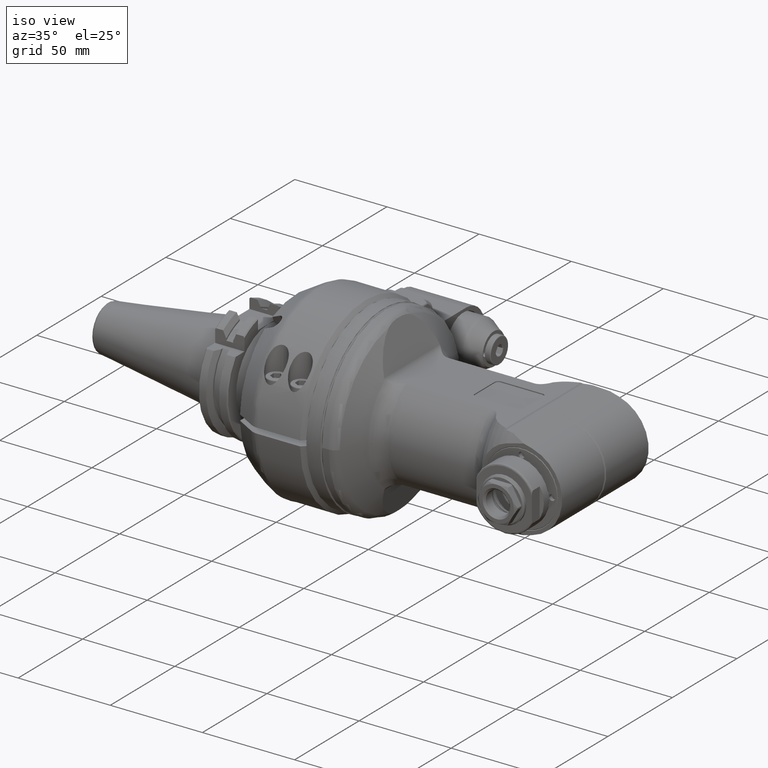
[diagram: clean part render]
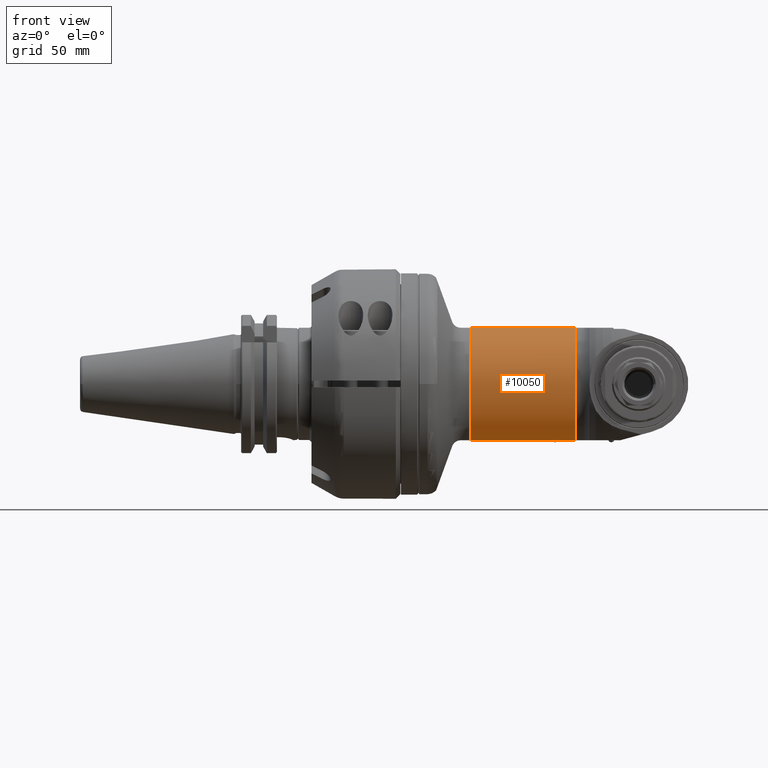
[diagram: tour spotlight — one face highlighted and labeled with its STEP entity id]
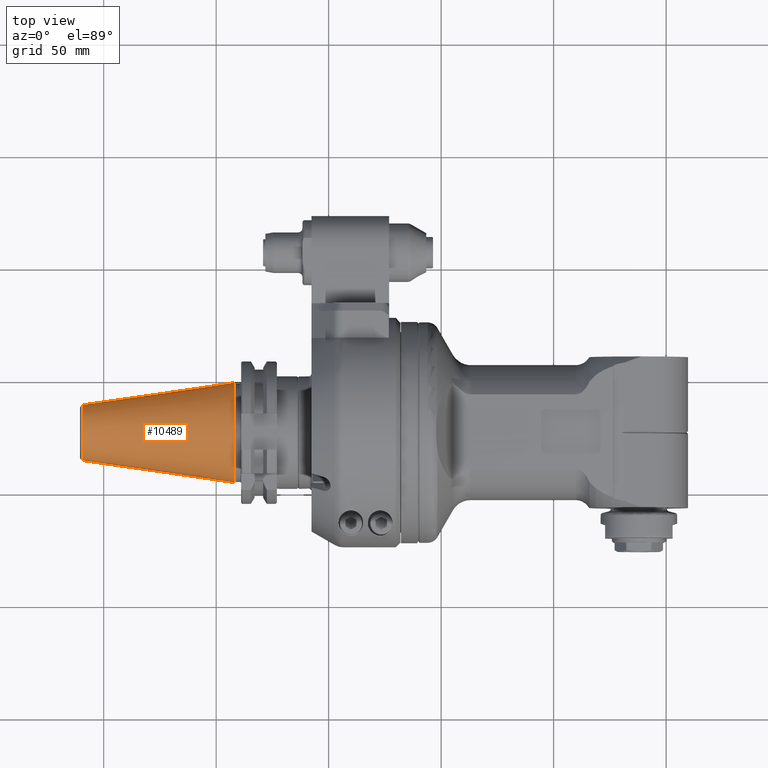
[diagram: tour spotlight — one face highlighted and labeled with its STEP entity id]
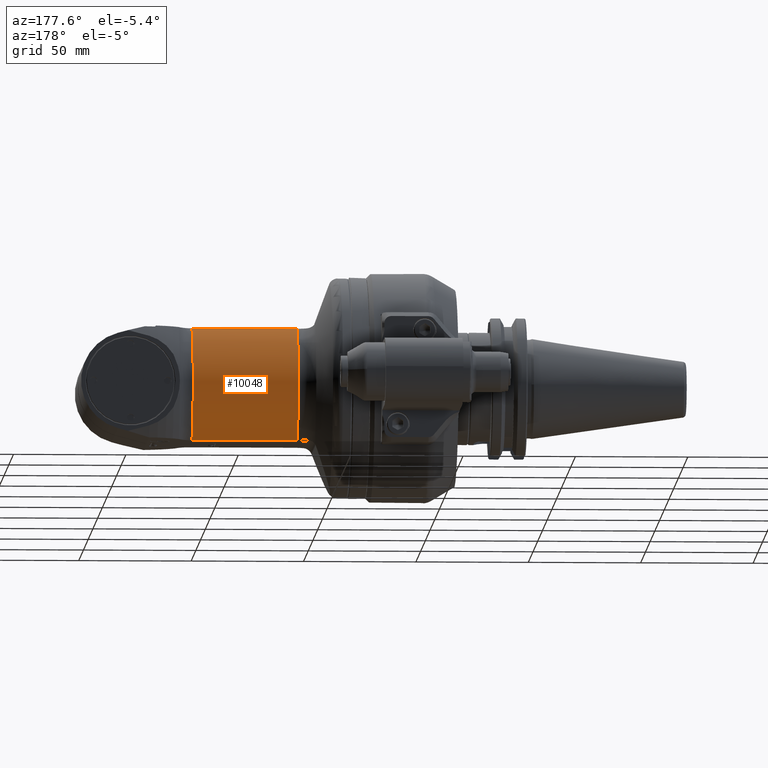
[diagram: tour spotlight — one face highlighted and labeled with its STEP entity id]
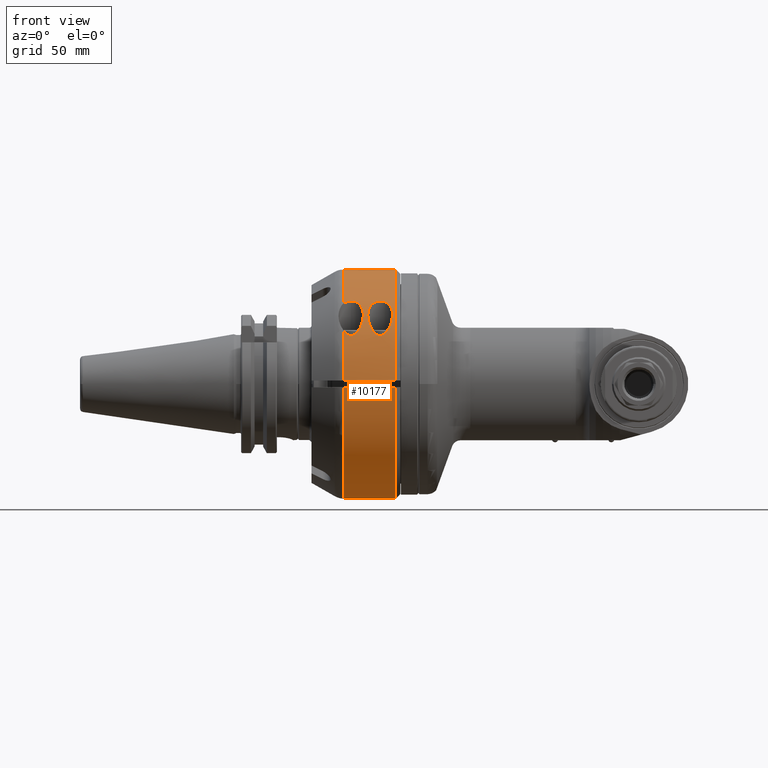
[diagram: tour spotlight — one face highlighted and labeled with its STEP entity id]
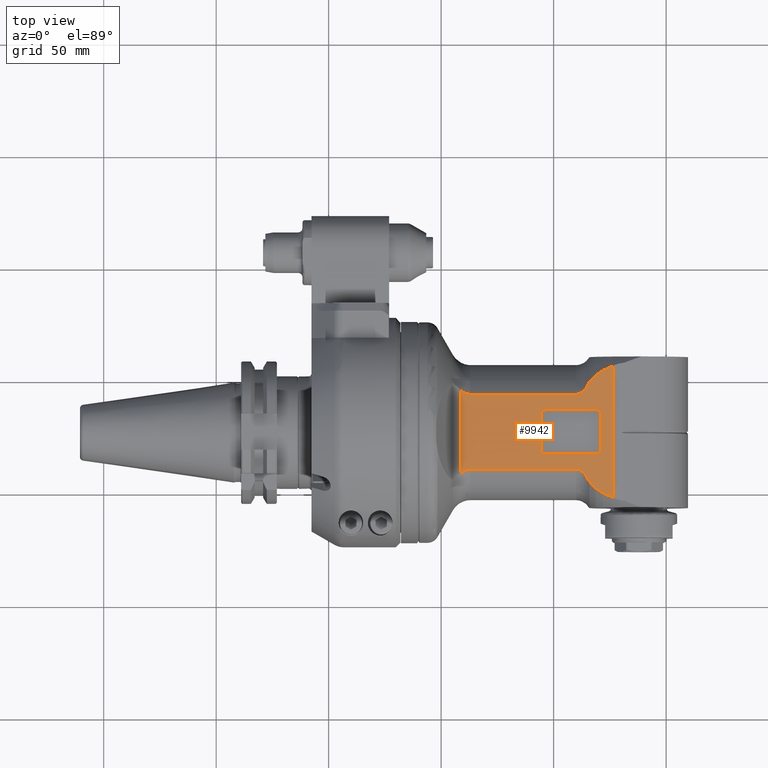
[diagram: tour spotlight — one face highlighted and labeled with its STEP entity id]
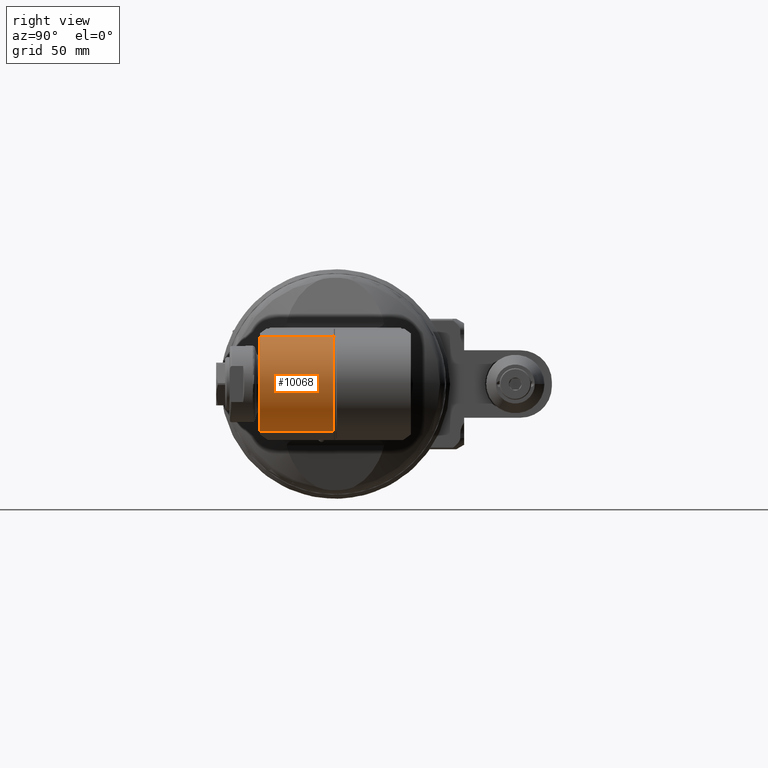
[diagram: tour spotlight — one face highlighted and labeled with its STEP entity id]
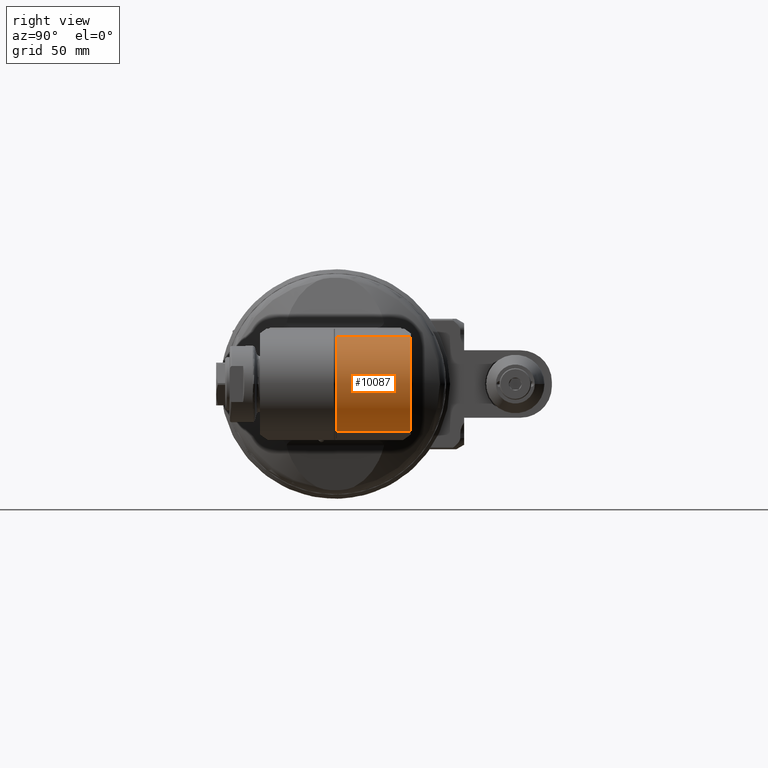
[diagram: tour spotlight — one face highlighted and labeled with its STEP entity id]
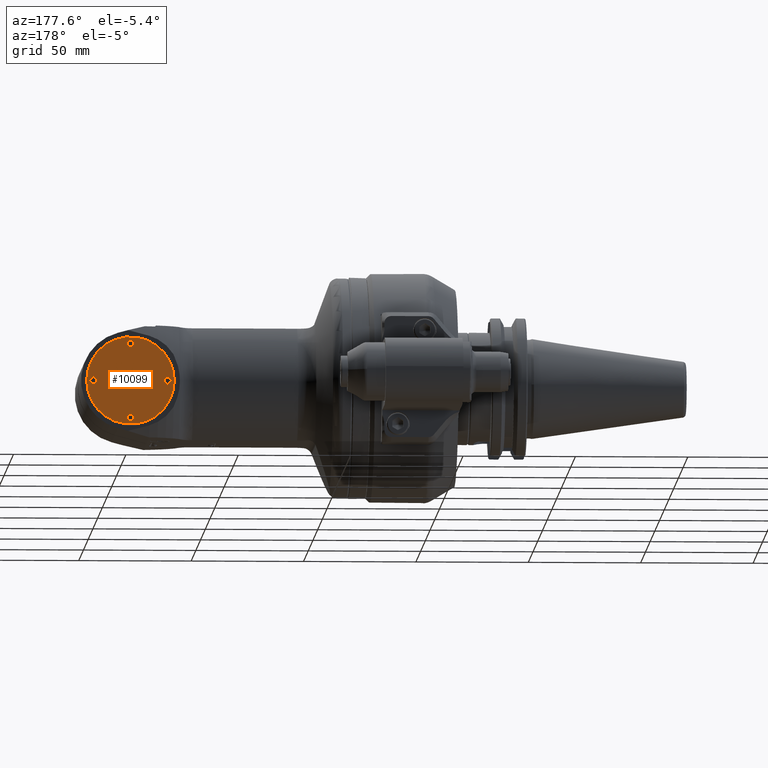
[diagram: tour spotlight — one face highlighted and labeled with its STEP entity id]
A machine part: a face-by-face anatomy tour. The part has 625 B-rep faces; the first image is the clean iso view, then the 8 largest visible faces are spotlighted one at a time (largest first), each with its STEP entity span.

Face 1 — front view, entity #10050. In plain terms, the highlighted cylindrical surface (partial cylindrical patch) has radius 30 mm, axis along (-1, 0, -0).
Definition (entity closure, byte-faithful):
#702=LINE('',#15178,#1375);
#812=LINE('',#15904,#1485);
#1375=VECTOR('',#12054,46.7720146362);
#1485=VECTOR('',#12602,46.7720146362);
#2049=CYLINDRICAL_SURFACE('',#10922,30.);
#2325=FACE_OUTER_BOUND('',#3000,.T.);
#3000=EDGE_LOOP('',(#7379,#7380,#7381,#7382));
#3704=CIRCLE('',#10923,30.);
#3705=CIRCLE('',#10924,30.);
#4167=VERTEX_POINT('',#15168);
#4168=VERTEX_POINT('',#15177);
#4353=VERTEX_POINT('',#15902);
#4354=VERTEX_POINT('',#15903);
#5217=EDGE_CURVE('',#4168,#4167,#702,.T.);
#5478=EDGE_CURVE('',#4353,#4354,#812,.T.);
#5506=EDGE_CURVE('',#4353,#4167,#3704,.T.);
#5507=EDGE_CURVE('',#4354,#4168,#3705,.T.);
#7379=ORIENTED_EDGE('',*,*,#5506,.F.);
#7380=ORIENTED_EDGE('',*,*,#5478,.T.);
#7381=ORIENTED_EDGE('',*,*,#5507,.T.);
#7382=ORIENTED_EDGE('',*,*,#5217,.T.);
#10050=ADVANCED_FACE('',(#2325),#2049,.T.);
#10922=AXIS2_PLACEMENT_3D('',#16024,#12625,#12626);
#10923=AXIS2_PLACEMENT_3D('',#16025,#12627,#12628);
#10924=AXIS2_PLACEMENT_3D('',#16026,#12629,#12630);
#12054=DIRECTION('',(-1.,0.,0.));
#12602=DIRECTION('',(1.,0.,0.));
#12625=DIRECTION('center_axis',(-1.,0.,0.));
#12626=DIRECTION('ref_axis',(0.,-1.,-1.22464679914735E-16));
#12627=DIRECTION('center_axis',(-1.,0.,0.));
#12628=DIRECTION('ref_axis',(0.,-0.552770798392605,-0.833333333333308));
#12629=DIRECTION('center_axis',(-1.,0.,0.));
#12630=DIRECTION('ref_axis',(0.,-0.552770798392605,-0.833333333333308));
#15168=CARTESIAN_POINT('',(35.16580758197,-16.58312395178,25.));
#15177=CARTESIAN_POINT('',(81.93782221817,-16.58312395178,25.));
#15178=CARTESIAN_POINT('',(81.93782221817,-16.58312395178,25.));
#15902=CARTESIAN_POINT('',(35.16580758197,-16.58312395178,-25.));
#15903=CARTESIAN_POINT('',(81.93782221817,-16.58312395178,-25.));
#15904=CARTESIAN_POINT('',(35.16580758197,-16.58312395178,-25.));
#16024=CARTESIAN_POINT('Origin',(74.97446463088,0.,0.));
#16025=CARTESIAN_POINT('Origin',(35.16580758197,0.,0.));
#16026=CARTESIAN_POINT('Origin',(81.93782221817,0.,0.));

Face 2 — top view, entity #10489. In plain terms, the highlighted conical surface has half-angle 8.297 deg.
Definition (entity closure, byte-faithful):
#650=CONICAL_SURFACE('',#11703,17.33109441571,0.144812411498922);
#1306=LINE('',#60051,#1979);
#1979=VECTOR('',#14674,17.33109441571);
#2764=FACE_OUTER_BOUND('',#3493,.T.);
#3493=EDGE_LOOP('',(#9520,#9521,#9522,#9523,#9524,#9525));
#4043=CIRCLE('',#11701,22.225);
#4044=CIRCLE('',#11702,22.225);
#4045=CIRCLE('',#11704,12.43718883141);
#4046=CIRCLE('',#11705,12.43718883141);
#5037=VERTEX_POINT('',#60044);
#5038=VERTEX_POINT('',#60045);
#5039=VERTEX_POINT('',#60050);
#5040=VERTEX_POINT('',#60052);
#6539=EDGE_CURVE('',#5037,#5038,#4043,.T.);
#6541=EDGE_CURVE('',#5038,#5037,#4044,.T.);
#6542=EDGE_CURVE('',#5037,#5039,#1306,.T.);
#6543=EDGE_CURVE('',#5040,#5039,#4045,.T.);
#6544=EDGE_CURVE('',#5039,#5040,#4046,.T.);
#9520=ORIENTED_EDGE('',*,*,#6539,.F.);
#9521=ORIENTED_EDGE('',*,*,#6542,.T.);
#9522=ORIENTED_EDGE('',*,*,#6543,.F.);
#9523=ORIENTED_EDGE('',*,*,#6544,.F.);
#9524=ORIENTED_EDGE('',*,*,#6542,.F.);
#9525=ORIENTED_EDGE('',*,*,#6541,.F.);
#10489=ADVANCED_FACE('',(#2764),#650,.T.);
#11701=AXIS2_PLACEMENT_3D('',#60046,#14667,#14668);
#11702=AXIS2_PLACEMENT_3D('',#60048,#14670,#14671);
#11703=AXIS2_PLACEMENT_3D('',#60049,#14672,#14673);
#11704=AXIS2_PLACEMENT_3D('',#60053,#14675,#14676);
#11705=AXIS2_PLACEMENT_3D('',#60054,#14677,#14678);
#14667=DIRECTION('center_axis',(1.,0.,0.));
#14668=DIRECTION('ref_axis',(0.,-1.,0.));
#14670=DIRECTION('center_axis',(1.,0.,0.));
#14671=DIRECTION('ref_axis',(0.,-1.,0.));
#14672=DIRECTION('center_axis',(1.,0.,0.));
#14673=DIRECTION('ref_axis',(0.,0.,1.));
#14674=DIRECTION('',(-0.98953299358046,-1.76724869581176E-17,0.144306807239621));
#14675=DIRECTION('center_axis',(-1.,0.,0.));
#14676=DIRECTION('ref_axis',(0.,-1.,0.));
#14677=DIRECTION('center_axis',(-1.,0.,0.));
#14678=DIRECTION('ref_axis',(0.,-1.,0.));
#60044=CARTESIAN_POINT('',(-86.,0.,-22.225));
#60045=CARTESIAN_POINT('',(-86.0000000000009,22.2249999999967,-2.72177751110459E-15));
#60046=CARTESIAN_POINT('Origin',(-86.,0.,0.));
#60048=CARTESIAN_POINT('Origin',(-86.,0.,0.));
#60049=CARTESIAN_POINT('Origin',(-119.55823010543,0.,0.));
#60050=CARTESIAN_POINT('',(-153.1164602109,1.5231163492777E-15,-12.4371888314096));
#60051=CARTESIAN_POINT('',(-119.55823010543,2.12244693019198E-15,-17.33109441571));
#60052=CARTESIAN_POINT('',(-153.1164602109,-12.43718883141,0.));
#60053=CARTESIAN_POINT('Origin',(-153.1164602109,0.,0.));
#60054=CARTESIAN_POINT('Origin',(-153.1164602109,0.,0.));

Face 3 — auxiliary view, entity #10048. In plain terms, the highlighted cylindrical surface (partial cylindrical patch) has radius 30 mm, axis along (-1, 0, -0).
Definition (entity closure, byte-faithful):
#704=LINE('',#15239,#1377);
#811=LINE('',#15900,#1484);
#1377=VECTOR('',#12056,46.7720146362);
#1484=VECTOR('',#12599,46.7720146362);
#2048=CYLINDRICAL_SURFACE('',#10912,30.);
#2323=FACE_OUTER_BOUND('',#2996,.T.);
#2996=EDGE_LOOP('',(#7344,#7345,#7346,#7347));
#3695=CIRCLE('',#10911,30.);
#3696=CIRCLE('',#10913,30.);
#4177=VERTEX_POINT('',#15223);
#4178=VERTEX_POINT('',#15238);
#4351=VERTEX_POINT('',#15887);
#4352=VERTEX_POINT('',#15898);
#5228=EDGE_CURVE('',#4178,#4177,#704,.T.);
#5474=EDGE_CURVE('',#4178,#4351,#3695,.T.);
#5476=EDGE_CURVE('',#4352,#4177,#3696,.T.);
#5477=EDGE_CURVE('',#4352,#4351,#811,.T.);
#7344=ORIENTED_EDGE('',*,*,#5474,.F.);
#7345=ORIENTED_EDGE('',*,*,#5228,.T.);
#7346=ORIENTED_EDGE('',*,*,#5476,.F.);
#7347=ORIENTED_EDGE('',*,*,#5477,.T.);
#10048=ADVANCED_FACE('',(#2323),#2048,.T.);
#10911=AXIS2_PLACEMENT_3D('',#15888,#12593,#12594);
#10912=AXIS2_PLACEMENT_3D('',#15897,#12595,#12596);
#10913=AXIS2_PLACEMENT_3D('',#15899,#12597,#12598);
#12056=DIRECTION('',(1.,0.,0.));
#12593=DIRECTION('center_axis',(-1.,0.,0.));
#12594=DIRECTION('ref_axis',(0.,0.552770798392605,0.833333333333308));
#12595=DIRECTION('center_axis',(-1.,0.,0.));
#12596=DIRECTION('ref_axis',(0.,1.,0.));
#12597=DIRECTION('center_axis',(1.,0.,0.));
#12598=DIRECTION('ref_axis',(0.,0.552770798392605,-0.833333333333308));
#12599=DIRECTION('',(-1.,0.,0.));
#15223=CARTESIAN_POINT('',(81.93782221817,16.58312395178,25.));
#15238=CARTESIAN_POINT('',(35.16580758197,16.58312395178,25.));
#15239=CARTESIAN_POINT('',(35.16580758197,16.58312395178,25.));
#15887=CARTESIAN_POINT('',(35.16580758197,16.58312395178,-25.));
#15888=CARTESIAN_POINT('Origin',(35.16580758197,0.,0.));
#15897=CARTESIAN_POINT('Origin',(74.97446463088,0.,0.));
#15898=CARTESIAN_POINT('',(81.93782221817,16.58312395178,-25.));
#15899=CARTESIAN_POINT('Origin',(81.93782221817,0.,0.));
#15900=CARTESIAN_POINT('',(81.93782221817,16.58312395178,-25.));

Face 4 — front view, entity #10177. In plain terms, the highlighted cylindrical surface (partial cylindrical patch) has radius 51 mm, axis along (1, 0, 0).
Definition (entity closure, byte-faithful):
#92=B_SPLINE_CURVE_WITH_KNOTS('',3,(#16578,#16579,#16580,#16581,#16582,
#16583,#16584,#16585,#16586,#16587,#16588,#16589,#16590,#16591,#16592,#16593,
#16594,#16595),.UNSPECIFIED.,.F.,.F.,(4,2,2,2,2,2,2,2,4),(1.24497996375057,
1.57211089183856,1.89924181992655,2.10031433028339,2.30138684064023,2.50245935099707,
2.70353186135391,3.0306627894419,3.35779371752989),.UNSPECIFIED.);
#95=B_SPLINE_CURVE_WITH_KNOTS('',3,(#16673,#16674,#16675,#16676,#16677,
#16678),.UNSPECIFIED.,.F.,.F.,(4,2,4),(-0.351622839102922,-0.201072510356838,
0.),.UNSPECIFIED.);
#96=B_SPLINE_CURVE_WITH_KNOTS('',3,(#16680,#16681,#16682,#16683,#16684,
#16685,#16686,#16687,#16688,#16689,#16690,#16691,#16692,#16693,#16694,#16695,
#16696,#16697,#16698,#16699,#16700,#16701,#16702,#16703,#16704,#16705),
 .UNSPECIFIED.,.F.,.F.,(4,2,2,2,2,2,2,2,2,2,2,2,4),(0.,0.201072510356838,
0.402145020713677,0.729275948801668,1.05640687688966,1.45814522272358,1.85988356855749,
2.08063520459886,2.19101102261954,2.30138684064023,2.41176265866091,2.52213847668159,
2.7154535046118),.UNSPECIFIED.);
#97=B_SPLINE_CURVE_WITH_KNOTS('',3,(#16709,#16710,#16711,#16712,#16713,
#16714,#16715,#16716,#16717,#16718,#16719,#16720,#16721,#16722,#16723,#16724,
#16725,#16726,#16727,#16728,#16729,#16730,#16731),.UNSPECIFIED.,.F.,.F.,
(4,2,2,2,2,3,2,2,2,2,4),(-1.24497996375057,-0.843241617916652,-0.441503272082734,
-0.220751636041367,-0.110375818020684,0.,0.110375818020684,0.220751636041367,
0.441503272082734,0.843241617916652,1.24497996375057),.UNSPECIFIED.);
#453=FACE_BOUND('',#3145,.T.);
#929=LINE('',#16616,#1602);
#931=LINE('',#16620,#1604);
#937=LINE('',#16667,#1610);
#938=LINE('',#16708,#1611);
#1602=VECTOR('',#13197,20.23205080757);
#1604=VECTOR('',#13199,20.23205080757);
#1610=VECTOR('',#13211,23.23206191748);
#1611=VECTOR('',#13220,23.23206611221);
#2085=CYLINDRICAL_SURFACE('',#11155,51.);
#2452=FACE_OUTER_BOUND('',#3144,.T.);
#3144=EDGE_LOOP('',(#7927,#7928,#7929,#7930,#7931,#7932,#7933,#7934,#7935,
#7936,#7937));
#3145=EDGE_LOOP('',(#7938,#7939));
#3803=CIRCLE('',#11156,51.);
#3804=CIRCLE('',#11157,51.);
#3805=CIRCLE('',#11158,51.);
#3806=CIRCLE('',#11159,51.);
#3807=CIRCLE('',#11160,51.);
#4506=VERTEX_POINT('',#16574);
#4508=VERTEX_POINT('',#16577);
#4515=VERTEX_POINT('',#16614);
#4516=VERTEX_POINT('',#16615);
#4517=VERTEX_POINT('',#16617);
#4518=VERTEX_POINT('',#16619);
#4528=VERTEX_POINT('',#16663);
#4529=VERTEX_POINT('',#16664);
#4530=VERTEX_POINT('',#16666);
#4531=VERTEX_POINT('',#16670);
#4532=VERTEX_POINT('',#16672);
#4533=VERTEX_POINT('',#16679);
#4534=VERTEX_POINT('',#16706);
#5731=EDGE_CURVE('',#4508,#4506,#92,.T.);
#5741=EDGE_CURVE('',#4515,#4516,#929,.T.);
#5743=EDGE_CURVE('',#4518,#4517,#931,.T.);
#5754=EDGE_CURVE('',#4528,#4529,#3803,.T.);
#5755=EDGE_CURVE('',#4528,#4530,#937,.T.);
#5756=EDGE_CURVE('',#4518,#4530,#3804,.T.);
#5757=EDGE_CURVE('',#4515,#4517,#3805,.T.);
#5758=EDGE_CURVE('',#4531,#4516,#3806,.T.);
#5759=EDGE_CURVE('',#4531,#4532,#95,.T.);
#5760=EDGE_CURVE('',#4532,#4533,#96,.T.);
#5761=EDGE_CURVE('',#4534,#4533,#3807,.T.);
#5762=EDGE_CURVE('',#4534,#4529,#938,.T.);
#5763=EDGE_CURVE('',#4506,#4508,#97,.T.);
#7927=ORIENTED_EDGE('',*,*,#5754,.F.);
#7928=ORIENTED_EDGE('',*,*,#5755,.T.);
#7929=ORIENTED_EDGE('',*,*,#5756,.F.);
#7930=ORIENTED_EDGE('',*,*,#5743,.T.);
#7931=ORIENTED_EDGE('',*,*,#5757,.F.);
#7932=ORIENTED_EDGE('',*,*,#5741,.T.);
#7933=ORIENTED_EDGE('',*,*,#5758,.F.);
#7934=ORIENTED_EDGE('',*,*,#5759,.T.);
#7935=ORIENTED_EDGE('',*,*,#5760,.T.);
#7936=ORIENTED_EDGE('',*,*,#5761,.F.);
#7937=ORIENTED_EDGE('',*,*,#5762,.T.);
#7938=ORIENTED_EDGE('',*,*,#5763,.T.);
#7939=ORIENTED_EDGE('',*,*,#5731,.T.);
#10177=ADVANCED_FACE('',(#2452,#453),#2085,.T.);
#11155=AXIS2_PLACEMENT_3D('',#16662,#13207,#13208);
#11156=AXIS2_PLACEMENT_3D('',#16665,#13209,#13210);
#11157=AXIS2_PLACEMENT_3D('',#16668,#13212,#13213);
#11158=AXIS2_PLACEMENT_3D('',#16669,#13214,#13215);
#11159=AXIS2_PLACEMENT_3D('',#16671,#13216,#13217);
#11160=AXIS2_PLACEMENT_3D('',#16707,#13218,#13219);
#13197=DIRECTION('',(-1.,0.,0.));
#13199=DIRECTION('',(1.,0.,0.));
#13207=DIRECTION('center_axis',(1.,0.,0.));
#13208=DIRECTION('ref_axis',(0.,1.,1.05873409698834E-10));
#13209=DIRECTION('center_axis',(1.,0.,0.));
#13210=DIRECTION('ref_axis',(0.,1.,0.));
#13211=DIRECTION('',(-1.,-3.620724304585E-11,1.230523343791E-9));
#13212=DIRECTION('center_axis',(-1.,0.,0.));
#13213=DIRECTION('ref_axis',(0.,0.818627450980411,-0.574324904998308));
#13214=DIRECTION('center_axis',(-1.,0.,0.));
#13215=DIRECTION('ref_axis',(0.,1.,0.));
#13216=DIRECTION('center_axis',(-1.,0.,0.));
#13217=DIRECTION('ref_axis',(0.,-0.711205879844998,0.702983781088798));
#13218=DIRECTION('center_axis',(-1.,0.,0.));
#13219=DIRECTION('ref_axis',(0.,-0.999567380468613,0.0294117647058804));
#13220=DIRECTION('',(1.,4.9878538981E-11,1.695142412605E-9));
#16574=CARTESIAN_POINT('',(-15.5,-40.7216512827,30.70418728464));
#16577=CARTESIAN_POINT('',(-26.5,-40.7216512827,30.7041872846388));
#16578=CARTESIAN_POINT('Ctrl Pts',(-26.5,-40.7216512827,30.7041872846388));
#16579=CARTESIAN_POINT('Ctrl Pts',(-26.5,-40.0651617871045,31.5748612439451));
#16580=CARTESIAN_POINT('Ctrl Pts',(-26.3775309176086,-39.319256727814,32.5000944024137));
#16581=CARTESIAN_POINT('Ctrl Pts',(-25.7586754272403,-37.8511872002494,
34.1986505928683));
#16582=CARTESIAN_POINT('Ctrl Pts',(-25.2627488095064,-37.1297545962508,
34.9727734951554));
#16583=CARTESIAN_POINT('Ctrl Pts',(-24.149351972259,-36.1782586100401,35.9500095679527));
#16584=CARTESIAN_POINT('Ctrl Pts',(-23.6039156243507,-35.8317714924385,
36.2931969488346));
#16585=CARTESIAN_POINT('Ctrl Pts',(-22.364786222781,-35.3524177755747,36.760284817991));
#16586=CARTESIAN_POINT('Ctrl Pts',(-21.6702417011895,-35.2216512827,36.8840789626077));
#16587=CARTESIAN_POINT('Ctrl Pts',(-20.3297582988105,-35.2216512827,36.8840789626077));
#16588=CARTESIAN_POINT('Ctrl Pts',(-19.635213777219,-35.3524177755747,36.760284817991));
#16589=CARTESIAN_POINT('Ctrl Pts',(-18.3960843756493,-35.8317714924385,
36.2931969488346));
#16590=CARTESIAN_POINT('Ctrl Pts',(-17.850648027741,-36.1782586100401,35.9500095679527));
#16591=CARTESIAN_POINT('Ctrl Pts',(-16.7372511904936,-37.1297545962508,
34.9727734951554));
#16592=CARTESIAN_POINT('Ctrl Pts',(-16.2413245727597,-37.8511872002494,
34.1986505928683));
#16593=CARTESIAN_POINT('Ctrl Pts',(-15.6224690823914,-39.319256727814,32.5000944024137));
#16594=CARTESIAN_POINT('Ctrl Pts',(-15.5,-40.0651617871045,31.5748612439451));
#16595=CARTESIAN_POINT('Ctrl Pts',(-15.5,-40.7216512827,30.7041872846388));
#16614=CARTESIAN_POINT('',(-17.,41.75,29.29057015492));
#16615=CARTESIAN_POINT('',(-37.23205080757,41.75,29.29057015492));
#16616=CARTESIAN_POINT('',(-17.,41.75,29.29057015492));
#16617=CARTESIAN_POINT('',(-17.,41.75,-29.29057015492));
#16619=CARTESIAN_POINT('',(-37.23205080757,41.75,-29.29057015492));
#16620=CARTESIAN_POINT('',(-37.23205080757,41.75,-29.29057015492));
#16662=CARTESIAN_POINT('Origin',(-43.,0.,0.));
#16663=CARTESIAN_POINT('',(-14.,-50.9779364039,-1.5));
#16664=CARTESIAN_POINT('',(-14.,-50.9779364039,1.5));
#16665=CARTESIAN_POINT('Origin',(-14.,0.,0.));
#16666=CARTESIAN_POINT('',(-37.2320508150874,-50.9779364043201,-1.49999998570621));
#16667=CARTESIAN_POINT('',(-14.,-50.9779364039,-1.5));
#16668=CARTESIAN_POINT('Origin',(-37.23205080757,0.,0.));
#16669=CARTESIAN_POINT('Origin',(-17.,0.,0.));
#16670=CARTESIAN_POINT('',(-37.23205080757,-36.27149987209,35.85217283553));
#16671=CARTESIAN_POINT('Origin',(-37.23205080757,0.,0.));
#16672=CARTESIAN_POINT('',(-34.,-35.2216512827,36.8840789626077));
#16673=CARTESIAN_POINT('Ctrl Pts',(-37.2320508075659,-36.2714998720946,
35.8521728355289));
#16674=CARTESIAN_POINT('Ctrl Pts',(-36.872037357752,-36.0100297211167,36.116701141561));
#16675=CARTESIAN_POINT('Ctrl Pts',(-36.44824163253,-35.7715494474255,36.3518780139684));
#16676=CARTESIAN_POINT('Ctrl Pts',(-35.364786222781,-35.3524177755747,36.760284817991));
#16677=CARTESIAN_POINT('Ctrl Pts',(-34.6702417011895,-35.2216512827,36.8840789626077));
#16678=CARTESIAN_POINT('Ctrl Pts',(-34.,-35.2216512827,36.8840789626077));
#16679=CARTESIAN_POINT('',(-37.23205080757,-45.1718026933,23.67505525733));
#16680=CARTESIAN_POINT('Ctrl Pts',(-34.,-35.2216512827,36.8840789626077));
#16681=CARTESIAN_POINT('Ctrl Pts',(-33.3297582988105,-35.2216512827,36.8840789626077));
#16682=CARTESIAN_POINT('Ctrl Pts',(-32.635213777219,-35.3524177755747,36.760284817991));
#16683=CARTESIAN_POINT('Ctrl Pts',(-31.3960843756493,-35.8317714924385,
36.2931969488346));
#16684=CARTESIAN_POINT('Ctrl Pts',(-30.850648027741,-36.1782586100401,35.9500095679527));
#16685=CARTESIAN_POINT('Ctrl Pts',(-29.7372511904936,-37.1297545962508,
34.9727734951554));
#16686=CARTESIAN_POINT('Ctrl Pts',(-29.2413245727597,-37.8511872002494,
34.1986505928683));
#16687=CARTESIAN_POINT('Ctrl Pts',(-28.6224690823914,-39.319256727814,32.5000944024137));
#16688=CARTESIAN_POINT('Ctrl Pts',(-28.5,-40.0651617871045,31.5748612439451));
#16689=CARTESIAN_POINT('Ctrl Pts',(-28.5,-41.5278636624324,29.6349422633357));
#16690=CARTESIAN_POINT('Ctrl Pts',(-28.6828935944427,-42.355228362554,28.4428786872814));
#16691=CARTESIAN_POINT('Ctrl Pts',(-29.4026147018995,-43.8528254301532,
26.0747465478085));
#16692=CARTESIAN_POINT('Ctrl Pts',(-29.9314939989374,-44.5246315328702,
24.8972647332227));
#16693=CARTESIAN_POINT('Ctrl Pts',(-31.001270294294,-45.3572445916551,23.326334884601));
#16694=CARTESIAN_POINT('Ctrl Pts',(-31.480842706606,-45.6482368635351,22.7481982089167));
#16695=CARTESIAN_POINT('Ctrl Pts',(-32.3308258147761,-45.9710043968678,
22.0845481334827));
#16696=CARTESIAN_POINT('Ctrl Pts',(-32.6354867073276,-46.0599916909384,
21.8974583438779));
#16697=CARTESIAN_POINT('Ctrl Pts',(-33.286197560497,-46.1851905126261,21.6321449190877));
#16698=CARTESIAN_POINT('Ctrl Pts',(-33.6320806065977,-46.2216512827,21.5536296873747));
#16699=CARTESIAN_POINT('Ctrl Pts',(-34.3679193934023,-46.2216512827,21.5536296873747));
#16700=CARTESIAN_POINT('Ctrl Pts',(-34.713802439503,-46.1851905126261,21.6321449190877));
#16701=CARTESIAN_POINT('Ctrl Pts',(-35.3645132926724,-46.0599916909384,
21.8974583438779));
#16702=CARTESIAN_POINT('Ctrl Pts',(-35.6691741852239,-45.9710043968678,
22.0845481334827));
#16703=CARTESIAN_POINT('Ctrl Pts',(-36.4487292658961,-45.6749807840842,
22.6932093917128));
#16704=CARTESIAN_POINT('Ctrl Pts',(-36.8782785168307,-45.4287400225037,
23.1848210334514));
#16705=CARTESIAN_POINT('Ctrl Pts',(-37.2320508075737,-45.1718026932997,
23.6750552573295));
#16706=CARTESIAN_POINT('',(-37.2320508231036,-50.9779364044793,1.499999980309));
#16707=CARTESIAN_POINT('Origin',(-37.23205080757,0.,0.));
#16708=CARTESIAN_POINT('',(-37.23206611221,-50.97793640506,1.499999960618));
#16709=CARTESIAN_POINT('Ctrl Pts',(-15.5,-40.7216512827,30.7041872846388));
#16710=CARTESIAN_POINT('Ctrl Pts',(-15.5,-41.5278636624324,29.6349422633357));
#16711=CARTESIAN_POINT('Ctrl Pts',(-15.6828935944427,-42.355228362554,28.4428786872814));
#16712=CARTESIAN_POINT('Ctrl Pts',(-16.4026147018995,-43.8528254301532,
26.0747465478085));
#16713=CARTESIAN_POINT('Ctrl Pts',(-16.9314939989374,-44.5246315328702,
24.8972647332227));
#16714=CARTESIAN_POINT('Ctrl Pts',(-18.001270294294,-45.3572445916551,23.326334884601));
#16715=CARTESIAN_POINT('Ctrl Pts',(-18.480842706606,-45.6482368635351,22.7481982089167));
#16716=CARTESIAN_POINT('Ctrl Pts',(-19.3308258147761,-45.9710043968678,
22.0845481334827));
#16717=CARTESIAN_POINT('Ctrl Pts',(-19.6354867073276,-46.0599916909384,
21.8974583438779));
#16718=CARTESIAN_POINT('Ctrl Pts',(-20.286197560497,-46.1851905126261,21.6321449190877));
#16719=CARTESIAN_POINT('Ctrl Pts',(-20.6320806065977,-46.2216512827,21.5536296873747));
#16720=CARTESIAN_POINT('Ctrl Pts',(-21.,-46.2216512827,21.5536296873747));
#16721=CARTESIAN_POINT('Ctrl Pts',(-21.3679193934023,-46.2216512827,21.5536296873747));
#16722=CARTESIAN_POINT('Ctrl Pts',(-21.713802439503,-46.1851905126261,21.6321449190877));
#16723=CARTESIAN_POINT('Ctrl Pts',(-22.3645132926724,-46.0599916909384,
21.8974583438779));
#16724=CARTESIAN_POINT('Ctrl Pts',(-22.6691741852239,-45.9710043968678,
22.0845481334827));
#16725=CARTESIAN_POINT('Ctrl Pts',(-23.519157293394,-45.6482368635351,22.7481982089167));
#16726=CARTESIAN_POINT('Ctrl Pts',(-23.998729705706,-45.3572445916551,23.326334884601));
#16727=CARTESIAN_POINT('Ctrl Pts',(-25.0685060010626,-44.5246315328702,
24.8972647332227));
#16728=CARTESIAN_POINT('Ctrl Pts',(-25.5973852981005,-43.8528254301532,
26.0747465478085));
#16729=CARTESIAN_POINT('Ctrl Pts',(-26.3171064055573,-42.355228362554,28.4428786872814));
#16730=CARTESIAN_POINT('Ctrl Pts',(-26.5,-41.5278636624324,29.6349422633357));
#16731=CARTESIAN_POINT('Ctrl Pts',(-26.5,-40.7216512827,30.7041872846388));

Face 5 — top view, entity #9942. In plain terms, the highlighted planar face has unit normal (0, 0, -1).
Definition (entity closure, byte-faithful):
#69=B_SPLINE_CURVE_WITH_KNOTS('',3,(#15169,#15170,#15171,#15172,#15173,
#15174,#15175,#15176),.UNSPECIFIED.,.F.,.F.,(4,2,2,4),(2.68007420427812,
2.85940536172762,3.00882891197884,3.1423743118532),.UNSPECIFIED.);
#70=B_SPLINE_CURVE_WITH_KNOTS('',3,(#15180,#15181,#15182,#15183,#15184,
#15185,#15186,#15187,#15188,#15189,#15190,#15191,#15192,#15193),
 .UNSPECIFIED.,.F.,.F.,(4,2,2,2,2,2,4),(-3.32581351683858,-3.21328851460941,
-3.0207654607387,-2.86863153258841,-2.71649760443812,-2.60114781955608,
-2.49776209313838),.UNSPECIFIED.);
#71=B_SPLINE_CURVE_WITH_KNOTS('',3,(#15224,#15225,#15226,#15227,#15228,
#15229,#15230,#15231,#15232,#15233,#15234,#15235,#15236,#15237),
 .UNSPECIFIED.,.F.,.F.,(4,2,2,2,2,2,4),(-2.49776209313838,-2.39437636672067,
-2.27902658183863,-2.12689265368834,-1.97475872553806,-1.78223567166734,
-1.66971058202039),.UNSPECIFIED.);
#72=B_SPLINE_CURVE_WITH_KNOTS('',3,(#15240,#15241,#15242,#15243,#15244,
#15245,#15246,#15247),.UNSPECIFIED.,.F.,.F.,(4,2,2,4),(3.1423743118532,
3.27591971172755,3.42534326197877,3.60467441942828),.UNSPECIFIED.);
#227=(
BOUNDED_CURVE()
B_SPLINE_CURVE(2,(#15159,#15160,#15161),.UNSPECIFIED.,.F.,.F.)
B_SPLINE_CURVE_WITH_KNOTS((3,3),(10.0626799056423,10.2526008068643),
 .UNSPECIFIED.)
CURVE()
GEOMETRIC_REPRESENTATION_ITEM()
RATIONAL_B_SPLINE_CURVE((1.02840572051089,1.01882819886388,1.00887903028035))
REPRESENTATION_ITEM('')
);
#228=(
BOUNDED_CURVE()
B_SPLINE_CURVE(2,(#15195,#15196,#15197),.UNSPECIFIED.,.F.,.F.)
B_SPLINE_CURVE_WITH_KNOTS((3,3),(-0.959764099372572,-0.6704163678676),
 .UNSPECIFIED.)
CURVE()
GEOMETRIC_REPRESENTATION_ITEM()
RATIONAL_B_SPLINE_CURVE((1.13756783349126,1.11959978720312,1.09996228300112))
REPRESENTATION_ITEM('')
);
#229=(
BOUNDED_CURVE()
B_SPLINE_CURVE(2,(#15198,#15199,#15200),.UNSPECIFIED.,.F.,.F.)
B_SPLINE_CURVE_WITH_KNOTS((3,3),(-0.532913393846783,-0.318014091893998),
 .UNSPECIFIED.)
CURVE()
GEOMETRIC_REPRESENTATION_ITEM()
RATIONAL_B_SPLINE_CURVE((1.06657051683378,1.05402008065282,1.04076639606592))
REPRESENTATION_ITEM('')
);
#230=(
BOUNDED_CURVE()
B_SPLINE_CURVE(2,(#15202,#15203,#15204),.UNSPECIFIED.,.F.,.F.)
B_SPLINE_CURVE_WITH_KNOTS((3,3),(0.177103965921413,0.209806671999694),
 .UNSPECIFIED.)
CURVE()
GEOMETRIC_REPRESENTATION_ITEM()
RATIONAL_B_SPLINE_CURVE((1.01355670021788,1.01479304991963,1.01602375286964))
REPRESENTATION_ITEM('')
);
#231=(
BOUNDED_CURVE()
B_SPLINE_CURVE(2,(#15208,#15209,#15210),.UNSPECIFIED.,.F.,.F.)
B_SPLINE_CURVE_WITH_KNOTS((3,3),(14.4648398716209,14.4975425776885),
 .UNSPECIFIED.)
CURVE()
GEOMETRIC_REPRESENTATION_ITEM()
RATIONAL_B_SPLINE_CURVE((1.01602375273381,1.01479304978397,1.01355670008238))
REPRESENTATION_ITEM('')
);
#232=(
BOUNDED_CURVE()
B_SPLINE_CURVE(2,(#15212,#15213,#15214),.UNSPECIFIED.,.F.,.F.)
B_SPLINE_CURVE_WITH_KNOTS((3,3),(-10.2522074218785,-10.0622916795826),
 .UNSPECIFIED.)
CURVE()
GEOMETRIC_REPRESENTATION_ITEM()
RATIONAL_B_SPLINE_CURVE((1.0088666855915,1.01881573243655,1.02839313689258))
REPRESENTATION_ITEM('')
);
#233=(
BOUNDED_CURVE()
B_SPLINE_CURVE(2,(#15216,#15217,#15218),.UNSPECIFIED.,.F.,.F.)
B_SPLINE_CURVE_WITH_KNOTS((3,3),(-8.41775624130447,-8.20286393257769),
 .UNSPECIFIED.)
CURVE()
GEOMETRIC_REPRESENTATION_ITEM()
RATIONAL_B_SPLINE_CURVE((1.0407483367188,1.05400179132849,1.06655200973496))
REPRESENTATION_ITEM('')
);
#234=(
BOUNDED_CURVE()
B_SPLINE_CURVE(2,(#15220,#15221,#15222),.UNSPECIFIED.,.F.,.F.)
B_SPLINE_CURVE_WITH_KNOTS((3,3),(-7.47705651106012,-7.18771987266258),
 .UNSPECIFIED.)
CURVE()
GEOMETRIC_REPRESENTATION_ITEM()
RATIONAL_B_SPLINE_CURVE((1.09993449274313,1.11957149630538,1.13753908489786))
REPRESENTATION_ITEM('')
);
#401=FACE_BOUND('',#2858,.T.);
#701=LINE('',#15167,#1374);
#702=LINE('',#15178,#1375);
#703=LINE('',#15206,#1376);
#704=LINE('',#15239,#1377);
#705=LINE('',#15250,#1378);
#706=LINE('',#15254,#1379);
#707=LINE('',#15258,#1380);
#708=LINE('',#15262,#1381);
#1374=VECTOR('',#12053,37.09647208267);
#1375=VECTOR('',#12054,46.7720146362);
#1376=VECTOR('',#12055,10.);
#1377=VECTOR('',#12056,46.7720146362);
#1378=VECTOR('',#12057,22.5);
#1379=VECTOR('',#12060,15.5);
#1380=VECTOR('',#12063,22.5);
#1381=VECTOR('',#12066,15.5);
#2217=FACE_OUTER_BOUND('',#2857,.T.);
#2857=EDGE_LOOP('',(#6848,#6849,#6850,#6851,#6852,#6853,#6854,#6855,#6856,
#6857,#6858,#6859,#6860,#6861,#6862,#6863));
#2858=EDGE_LOOP('',(#6864,#6865,#6866,#6867,#6868,#6869,#6870,#6871));
#3589=CIRCLE('',#10696,2.);
#3590=CIRCLE('',#10697,2.);
#3591=CIRCLE('',#10698,2.);
#3592=CIRCLE('',#10699,2.);
#4163=VERTEX_POINT('',#15157);
#4164=VERTEX_POINT('',#15158);
#4165=VERTEX_POINT('',#15165);
#4166=VERTEX_POINT('',#15166);
#4167=VERTEX_POINT('',#15168);
#4168=VERTEX_POINT('',#15177);
#4169=VERTEX_POINT('',#15179);
#4170=VERTEX_POINT('',#15194);
#4171=VERTEX_POINT('',#15201);
#4172=VERTEX_POINT('',#15205);
#4173=VERTEX_POINT('',#15207);
#4174=VERTEX_POINT('',#15211);
#4175=VERTEX_POINT('',#15215);
#4176=VERTEX_POINT('',#15219);
#4177=VERTEX_POINT('',#15223);
#4178=VERTEX_POINT('',#15238);
#4179=VERTEX_POINT('',#15248);
#4180=VERTEX_POINT('',#15249);
#4181=VERTEX_POINT('',#15251);
#4182=VERTEX_POINT('',#15253);
#4183=VERTEX_POINT('',#15255);
#4184=VERTEX_POINT('',#15257);
#4185=VERTEX_POINT('',#15259);
#4186=VERTEX_POINT('',#15261);
#5212=EDGE_CURVE('',#4163,#4164,#227,.T.);
#5215=EDGE_CURVE('',#4165,#4166,#701,.T.);
#5216=EDGE_CURVE('',#4165,#4167,#69,.T.);
#5217=EDGE_CURVE('',#4168,#4167,#702,.T.);
#5218=EDGE_CURVE('',#4169,#4168,#70,.T.);
#5219=EDGE_CURVE('',#4169,#4170,#228,.T.);
#5220=EDGE_CURVE('',#4170,#4163,#229,.T.);
#5221=EDGE_CURVE('',#4171,#4164,#230,.T.);
#5222=EDGE_CURVE('',#4172,#4171,#703,.T.);
#5223=EDGE_CURVE('',#4173,#4172,#231,.T.);
#5224=EDGE_CURVE('',#4173,#4174,#232,.T.);
#5225=EDGE_CURVE('',#4174,#4175,#233,.T.);
#5226=EDGE_CURVE('',#4175,#4176,#234,.T.);
#5227=EDGE_CURVE('',#4177,#4176,#71,.T.);
#5228=EDGE_CURVE('',#4178,#4177,#704,.T.);
#5229=EDGE_CURVE('',#4178,#4166,#72,.T.);
#5230=EDGE_CURVE('',#4179,#4180,#705,.T.);
#5231=EDGE_CURVE('',#4180,#4181,#3589,.T.);
#5232=EDGE_CURVE('',#4181,#4182,#706,.T.);
#5233=EDGE_CURVE('',#4182,#4183,#3590,.T.);
#5234=EDGE_CURVE('',#4183,#4184,#707,.T.);
#5235=EDGE_CURVE('',#4184,#4185,#3591,.T.);
#5236=EDGE_CURVE('',#4185,#4186,#708,.T.);
#5237=EDGE_CURVE('',#4186,#4179,#3592,.T.);
#6848=ORIENTED_EDGE('',*,*,#5215,.F.);
#6849=ORIENTED_EDGE('',*,*,#5216,.T.);
#6850=ORIENTED_EDGE('',*,*,#5217,.F.);
#6851=ORIENTED_EDGE('',*,*,#5218,.F.);
#6852=ORIENTED_EDGE('',*,*,#5219,.T.);
#6853=ORIENTED_EDGE('',*,*,#5220,.T.);
#6854=ORIENTED_EDGE('',*,*,#5212,.T.);
#6855=ORIENTED_EDGE('',*,*,#5221,.F.);
#6856=ORIENTED_EDGE('',*,*,#5222,.F.);
#6857=ORIENTED_EDGE('',*,*,#5223,.F.);
#6858=ORIENTED_EDGE('',*,*,#5224,.T.);
#6859=ORIENTED_EDGE('',*,*,#5225,.T.);
#6860=ORIENTED_EDGE('',*,*,#5226,.T.);
#6861=ORIENTED_EDGE('',*,*,#5227,.F.);
#6862=ORIENTED_EDGE('',*,*,#5228,.F.);
#6863=ORIENTED_EDGE('',*,*,#5229,.T.);
#6864=ORIENTED_EDGE('',*,*,#5230,.T.);
#6865=ORIENTED_EDGE('',*,*,#5231,.T.);
#6866=ORIENTED_EDGE('',*,*,#5232,.T.);
#6867=ORIENTED_EDGE('',*,*,#5233,.T.);
#6868=ORIENTED_EDGE('',*,*,#5234,.T.);
#6869=ORIENTED_EDGE('',*,*,#5235,.T.);
#6870=ORIENTED_EDGE('',*,*,#5236,.T.);
#6871=ORIENTED_EDGE('',*,*,#5237,.T.);
#9641=PLANE('',#10695);
#9942=ADVANCED_FACE('',(#2217,#401),#9641,.F.);
#10695=AXIS2_PLACEMENT_3D('',#15164,#12051,#12052);
#10696=AXIS2_PLACEMENT_3D('',#15252,#12058,#12059);
#10697=AXIS2_PLACEMENT_3D('',#15256,#12061,#12062);
#10698=AXIS2_PLACEMENT_3D('',#15260,#12064,#12065);
#10699=AXIS2_PLACEMENT_3D('',#15263,#12067,#12068);
#12051=DIRECTION('center_axis',(0.,0.,-1.));
#12052=DIRECTION('ref_axis',(1.,0.,0.));
#12053=DIRECTION('',(0.,1.,0.));
#12054=DIRECTION('',(-1.,0.,0.));
#12055=DIRECTION('',(0.,-1.,0.));
#12056=DIRECTION('',(1.,0.,0.));
#12057=DIRECTION('',(-1.,0.,0.));
#12058=DIRECTION('center_axis',(0.,0.,-1.));
#12059=DIRECTION('ref_axis',(0.,-1.,0.));
#12060=DIRECTION('',(0.,1.,0.));
#12061=DIRECTION('center_axis',(0.,0.,-1.));
#12062=DIRECTION('ref_axis',(-1.,0.,0.));
#12063=DIRECTION('',(1.,0.,0.));
#12064=DIRECTION('center_axis',(0.,0.,-1.));
#12065=DIRECTION('ref_axis',(0.,1.,0.));
#12066=DIRECTION('',(0.,-1.,0.));
#12067=DIRECTION('center_axis',(0.,0.,-1.));
#12068=DIRECTION('ref_axis',(1.,0.,0.));
#15157=CARTESIAN_POINT('',(94.0730565743641,-27.2763634946809,24.9999999690279));
#15158=CARTESIAN_POINT('',(97.766276708296,-28.8832131299173,24.9999999959775));
#15159=CARTESIAN_POINT('Ctrl Pts',(94.0730565896248,-27.2763634604014,25.));
#15160=CARTESIAN_POINT('Ctrl Pts',(95.8668310521675,-28.0669676858729,25.));
#15161=CARTESIAN_POINT('Ctrl Pts',(97.7662767088955,-28.8832131285638,25.));
#15164=CARTESIAN_POINT('Origin',(48.00000004466,-58.8000024,25.));
#15165=CARTESIAN_POINT('',(30.8008301975,-18.54823604133,25.));
#15166=CARTESIAN_POINT('',(30.8008301975,18.54823604133,25.));
#15167=CARTESIAN_POINT('',(30.8008301975,-18.54823604133,25.));
#15168=CARTESIAN_POINT('',(35.16580758197,-16.58312395178,25.));
#15169=CARTESIAN_POINT('Ctrl Pts',(30.8008301975013,-18.5482360413314,25.));
#15170=CARTESIAN_POINT('Ctrl Pts',(31.2768824719658,-18.1051437659629,25.));
#15171=CARTESIAN_POINT('Ctrl Pts',(31.7927287077858,-17.713449802726,25.));
#15172=CARTESIAN_POINT('Ctrl Pts',(32.7382766269785,-17.1595326432425,25.));
#15173=CARTESIAN_POINT('Ctrl Pts',(33.2844305992261,-16.9167277905047,25.));
#15174=CARTESIAN_POINT('Ctrl Pts',(34.1920196550243,-16.6598919965139,25.));
#15175=CARTESIAN_POINT('Ctrl Pts',(34.7206562490555,-16.583123951777,25.));
#15176=CARTESIAN_POINT('Ctrl Pts',(35.16580758197,-16.583123951777,25.));
#15177=CARTESIAN_POINT('',(81.93782221817,-16.58312395178,25.));
#15178=CARTESIAN_POINT('',(81.93782221817,-16.58312395178,25.));
#15179=CARTESIAN_POINT('',(88.0000003213942,-22.2991037344195,24.9999998483624));
#15180=CARTESIAN_POINT('Ctrl Pts',(88.0000002856868,-22.2991037481422,25.));
#15181=CARTESIAN_POINT('Ctrl Pts',(87.8570280916971,-21.9270808407463,25.));
#15182=CARTESIAN_POINT('Ctrl Pts',(87.6935946921902,-21.5500745930567,25.));
#15183=CARTESIAN_POINT('Ctrl Pts',(87.2036025382881,-20.5518000895077,25.));
#15184=CARTESIAN_POINT('Ctrl Pts',(86.8418295870736,-19.9481759632981,25.));
#15185=CARTESIAN_POINT('Ctrl Pts',(86.1684215512574,-19.0173735566937,25.));
#15186=CARTESIAN_POINT('Ctrl Pts',(85.8122244578217,-18.5891145938405,25.));
#15187=CARTESIAN_POINT('Ctrl Pts',(85.0206983836014,-17.8190712330243,25.));
#15188=CARTESIAN_POINT('Ctrl Pts',(84.5843919534727,-17.478292191667,25.));
#15189=CARTESIAN_POINT('Ctrl Pts',(83.8152160730215,-17.0273586096957,25.));
#15190=CARTESIAN_POINT('Ctrl Pts',(83.3934489095303,-16.8402713953867,25.));
#15191=CARTESIAN_POINT('Ctrl Pts',(82.6917353349449,-16.6422520575151,25.));
#15192=CARTESIAN_POINT('Ctrl Pts',(82.282441306229,-16.583123951777,25.));
#15193=CARTESIAN_POINT('Ctrl Pts',(81.93782221817,-16.583123951777,25.));
#15194=CARTESIAN_POINT('',(90.8562966483786,-25.2041669857687,24.9999998136759));
#15195=CARTESIAN_POINT('Ctrl Pts',(88.000000482371,-22.2991035814185,25.));
#15196=CARTESIAN_POINT('Ctrl Pts',(89.3408101630023,-23.7095328932192,25.));
#15197=CARTESIAN_POINT('Ctrl Pts',(90.8562966895663,-25.2041669449931,25.));
#15198=CARTESIAN_POINT('Ctrl Pts',(90.8562967754463,-25.2041667933738,25.));
#15199=CARTESIAN_POINT('Ctrl Pts',(92.4011697074171,-26.2188286251669,25.));
#15200=CARTESIAN_POINT('Ctrl Pts',(94.0730565813035,-27.2763634840399,25.));
#15201=CARTESIAN_POINT('',(98.4900005095658,-29.0863623621592,24.999999794761));
#15202=CARTESIAN_POINT('Ctrl Pts',(98.4900006372509,-29.086361927791,25.));
#15203=CARTESIAN_POINT('Ctrl Pts',(98.1268705630049,-28.9845834161671,25.));
#15204=CARTESIAN_POINT('Ctrl Pts',(97.7662767096866,-28.8832131250135,25.));
#15205=CARTESIAN_POINT('',(98.4900005095658,29.0863623621592,24.999999794761));
#15206=CARTESIAN_POINT('',(98.4900000000001,-29.4000012000001,25.));
#15207=CARTESIAN_POINT('',(97.7662767082955,28.883213129917,24.9999999959776));
#15208=CARTESIAN_POINT('Ctrl Pts',(97.766276709686,28.8832131250133,25.));
#15209=CARTESIAN_POINT('Ctrl Pts',(98.1268705630045,28.984583416167,25.));
#15210=CARTESIAN_POINT('Ctrl Pts',(98.4900006372509,29.0863619277909,25.));
#15211=CARTESIAN_POINT('',(94.0730565743643,27.276363494681,24.9999999690278));
#15212=CARTESIAN_POINT('Ctrl Pts',(97.7662767088949,28.8832131285635,25.));
#15213=CARTESIAN_POINT('Ctrl Pts',(95.8668310521673,28.0669676858729,25.));
#15214=CARTESIAN_POINT('Ctrl Pts',(94.073056589625,27.2763634604015,25.));
#15215=CARTESIAN_POINT('',(90.8562966483176,25.2041669856958,24.9999998136967));
#15216=CARTESIAN_POINT('Ctrl Pts',(94.0730565813037,27.27636348404,25.));
#15217=CARTESIAN_POINT('Ctrl Pts',(92.401169707376,26.218828625141,25.));
#15218=CARTESIAN_POINT('Ctrl Pts',(90.8562967753703,25.2041667933239,25.));
#15219=CARTESIAN_POINT('',(88.0000007039945,22.2991045825147,24.999999638726));
#15220=CARTESIAN_POINT('Ctrl Pts',(90.8562966894988,25.2041669449266,25.));
#15221=CARTESIAN_POINT('Ctrl Pts',(89.3408105043881,23.7095332299057,25.));
#15222=CARTESIAN_POINT('Ctrl Pts',(88.000001087571,22.2991042180426,25.));
#15223=CARTESIAN_POINT('',(81.93782221817,16.58312395178,25.));
#15224=CARTESIAN_POINT('Ctrl Pts',(81.93782221817,16.583123951777,25.));
#15225=CARTESIAN_POINT('Ctrl Pts',(82.282441306229,16.583123951777,25.));
#15226=CARTESIAN_POINT('Ctrl Pts',(82.6917353349449,16.6422520575151,25.));
#15227=CARTESIAN_POINT('Ctrl Pts',(83.3934489095303,16.8402713953867,25.));
#15228=CARTESIAN_POINT('Ctrl Pts',(83.8152160730215,17.0273586096957,25.));
#15229=CARTESIAN_POINT('Ctrl Pts',(84.5843919534727,17.478292191667,25.));
#15230=CARTESIAN_POINT('Ctrl Pts',(85.0206983836014,17.8190712330244,25.));
#15231=CARTESIAN_POINT('Ctrl Pts',(85.8122244578217,18.5891145938405,25.));
#15232=CARTESIAN_POINT('Ctrl Pts',(86.1684215512574,19.0173735566936,25.));
#15233=CARTESIAN_POINT('Ctrl Pts',(86.8418295870736,19.9481759632981,25.));
#15234=CARTESIAN_POINT('Ctrl Pts',(87.2036025382881,20.5518000895077,25.));
#15235=CARTESIAN_POINT('Ctrl Pts',(87.6935948326076,21.5500748791327,25.));
#15236=CARTESIAN_POINT('Ctrl Pts',(87.857028345229,21.927081426712,25.));
#15237=CARTESIAN_POINT('Ctrl Pts',(88.0000006189109,22.2991046152131,25.));
#15238=CARTESIAN_POINT('',(35.16580758197,16.58312395178,25.));
#15239=CARTESIAN_POINT('',(35.16580758197,16.58312395178,25.));
#15240=CARTESIAN_POINT('Ctrl Pts',(35.16580758197,16.583123951777,25.));
#15241=CARTESIAN_POINT('Ctrl Pts',(34.7206562490555,16.583123951777,25.));
#15242=CARTESIAN_POINT('Ctrl Pts',(34.1920196550243,16.6598919965139,25.));
#15243=CARTESIAN_POINT('Ctrl Pts',(33.2844305992261,16.9167277905047,25.));
#15244=CARTESIAN_POINT('Ctrl Pts',(32.7382766269785,17.1595326432425,25.));
#15245=CARTESIAN_POINT('Ctrl Pts',(31.7927287077858,17.713449802726,25.));
#15246=CARTESIAN_POINT('Ctrl Pts',(31.2768824719658,18.1051437659629,25.));
#15247=CARTESIAN_POINT('Ctrl Pts',(30.8008301975013,18.5482360413314,25.));
#15248=CARTESIAN_POINT('',(91.,-9.75,25.));
#15249=CARTESIAN_POINT('',(68.5,-9.75,25.));
#15250=CARTESIAN_POINT('',(91.,-9.75,25.));
#15251=CARTESIAN_POINT('',(66.5,-7.75,25.));
#15252=CARTESIAN_POINT('Origin',(68.5,-7.75,25.));
#15253=CARTESIAN_POINT('',(66.5,7.75,25.));
#15254=CARTESIAN_POINT('',(66.5,-7.75,25.));
#15255=CARTESIAN_POINT('',(68.5,9.75,25.));
#15256=CARTESIAN_POINT('Origin',(68.5,7.75,25.));
#15257=CARTESIAN_POINT('',(91.,9.75,25.));
#15258=CARTESIAN_POINT('',(68.5,9.75,25.));
#15259=CARTESIAN_POINT('',(93.,7.75,25.));
#15260=CARTESIAN_POINT('Origin',(91.,7.75,25.));
#15261=CARTESIAN_POINT('',(93.,-7.75,25.));
#15262=CARTESIAN_POINT('',(93.,7.75,25.));
#15263=CARTESIAN_POINT('Origin',(91.,-7.75,25.));

Face 6 — right view, entity #10068. In plain terms, the highlighted cylindrical surface (partial cylindrical patch) has radius 22 mm, axis along (0, 1, 0).
Definition (entity closure, byte-faithful):
#822=LINE('',#16051,#1495);
#831=LINE('',#16085,#1504);
#1495=VECTOR('',#12668,32.83431457505);
#1504=VECTOR('',#12705,32.83431457505);
#2051=CYLINDRICAL_SURFACE('',#10956,22.);
#2343=FACE_OUTER_BOUND('',#3018,.T.);
#3018=EDGE_LOOP('',(#7456,#7457,#7458,#7459));
#3586=CIRCLE('',#10691,22.);
#3717=CIRCLE('',#10954,22.);
#4159=VERTEX_POINT('',#15143);
#4160=VERTEX_POINT('',#15145);
#4381=VERTEX_POINT('',#16049);
#4388=VERTEX_POINT('',#16079);
#5208=EDGE_CURVE('',#4160,#4159,#3586,.T.);
#5518=EDGE_CURVE('',#4159,#4381,#822,.T.);
#5531=EDGE_CURVE('',#4381,#4388,#3717,.T.);
#5534=EDGE_CURVE('',#4388,#4160,#831,.T.);
#7456=ORIENTED_EDGE('',*,*,#5531,.T.);
#7457=ORIENTED_EDGE('',*,*,#5534,.T.);
#7458=ORIENTED_EDGE('',*,*,#5208,.T.);
#7459=ORIENTED_EDGE('',*,*,#5518,.T.);
#10068=ADVANCED_FACE('',(#2343),#2051,.T.);
#10691=AXIS2_PLACEMENT_3D('',#15146,#12042,#12043);
#10954=AXIS2_PLACEMENT_3D('',#16080,#12698,#12699);
#10956=AXIS2_PLACEMENT_3D('',#16084,#12703,#12704);
#12042=DIRECTION('center_axis',(0.,1.,0.));
#12043=DIRECTION('ref_axis',(0.258819045102493,0.,0.965925826289076));
#12668=DIRECTION('',(0.,1.,0.));
#12698=DIRECTION('center_axis',(0.,-1.,0.));
#12699=DIRECTION('ref_axis',(0.258819045102493,0.,-0.965925826289076));
#12703=DIRECTION('center_axis',(0.,1.,0.));
#12704=DIRECTION('ref_axis',(1.,0.,7.22789203751574E-15));
#12705=DIRECTION('',(-1.038731941199E-14,-1.,0.));
#15143=CARTESIAN_POINT('',(115.6940189923,-33.5,-21.25036817836));
#15145=CARTESIAN_POINT('',(115.6940189923,-33.5,21.25036817836));
#15146=CARTESIAN_POINT('Origin',(110.,-33.5,0.));
#16049=CARTESIAN_POINT('',(115.6940189923,-0.6656854249492,-21.25036817836));
#16051=CARTESIAN_POINT('',(115.6940189923,-33.5,-21.25036817836));
#16079=CARTESIAN_POINT('',(115.6940189923,-0.6656854249492,21.25036817836));
#16080=CARTESIAN_POINT('Origin',(110.,-0.6656854249492,0.));
#16084=CARTESIAN_POINT('Origin',(110.,-71.53832403312,0.));
#16085=CARTESIAN_POINT('',(115.6940189923,-0.6656854249492,21.25036817836));

Face 7 — right view, entity #10087. In plain terms, the highlighted cylindrical surface (partial cylindrical patch) has radius 22 mm, axis along (0, 1, 0).
Definition (entity closure, byte-faithful):
#839=LINE('',#16231,#1512);
#840=LINE('',#16234,#1513);
#1512=VECTOR('',#12785,32.83431457505);
#1513=VECTOR('',#12788,32.83431457505);
#2052=CYLINDRICAL_SURFACE('',#10993,22.);
#2362=FACE_OUTER_BOUND('',#3038,.T.);
#3038=EDGE_LOOP('',(#7557,#7558,#7559,#7560));
#3731=CIRCLE('',#10990,22.);
#3733=CIRCLE('',#10994,22.);
#4386=VERTEX_POINT('',#16069);
#4413=VERTEX_POINT('',#16223);
#4414=VERTEX_POINT('',#16225);
#4416=VERTEX_POINT('',#16233);
#5575=EDGE_CURVE('',#4413,#4414,#3731,.T.);
#5578=EDGE_CURVE('',#4386,#4414,#839,.T.);
#5579=EDGE_CURVE('',#4413,#4416,#840,.T.);
#5580=EDGE_CURVE('',#4386,#4416,#3733,.T.);
#7557=ORIENTED_EDGE('',*,*,#5578,.T.);
#7558=ORIENTED_EDGE('',*,*,#5575,.F.);
#7559=ORIENTED_EDGE('',*,*,#5579,.T.);
#7560=ORIENTED_EDGE('',*,*,#5580,.F.);
#10087=ADVANCED_FACE('',(#2362),#2052,.T.);
#10990=AXIS2_PLACEMENT_3D('',#16226,#12778,#12779);
#10993=AXIS2_PLACEMENT_3D('',#16232,#12786,#12787);
#10994=AXIS2_PLACEMENT_3D('',#16235,#12789,#12790);
#12778=DIRECTION('center_axis',(0.,1.,0.));
#12779=DIRECTION('ref_axis',(0.258819045102493,0.,0.965925826289076));
#12785=DIRECTION('',(0.,1.,0.));
#12786=DIRECTION('center_axis',(0.,1.,0.));
#12787=DIRECTION('ref_axis',(1.,0.,-1.22464679914735E-16));
#12788=DIRECTION('',(0.,-1.,0.));
#12789=DIRECTION('center_axis',(0.,-1.,0.));
#12790=DIRECTION('ref_axis',(0.258819045102493,0.,-0.965925826289076));
#16069=CARTESIAN_POINT('',(115.6940189923,0.6656854249493,-21.25036817836));
#16223=CARTESIAN_POINT('',(115.6940189923,33.5,21.25036817836));
#16225=CARTESIAN_POINT('',(115.6940189923,33.5,-21.25036817836));
#16226=CARTESIAN_POINT('Origin',(110.,33.5,0.));
#16231=CARTESIAN_POINT('',(115.6940189923,0.6656854249493,-21.25036817836));
#16232=CARTESIAN_POINT('Origin',(110.,-71.53832403312,0.));
#16233=CARTESIAN_POINT('',(115.6940189923,0.6656854249493,21.25036817836));
#16234=CARTESIAN_POINT('',(115.6940189923,33.5,21.25036817836));
#16235=CARTESIAN_POINT('Origin',(110.,0.6656854249493,0.));

Face 8 — auxiliary view, entity #10099. In plain terms, the highlighted planar face has unit normal (0, 1, 0).
Definition (entity closure, byte-faithful):
#437=FACE_BOUND('',#3051,.T.);
#438=FACE_BOUND('',#3052,.T.);
#439=FACE_BOUND('',#3053,.T.);
#440=FACE_BOUND('',#3054,.T.);
#2374=FACE_OUTER_BOUND('',#3050,.T.);
#3050=EDGE_LOOP('',(#7609));
#3051=EDGE_LOOP('',(#7610));
#3052=EDGE_LOOP('',(#7611));
#3053=EDGE_LOOP('',(#7612));
#3054=EDGE_LOOP('',(#7613));
#3740=CIRCLE('',#11013,19.5);
#3741=CIRCLE('',#11015,1.6);
#3742=CIRCLE('',#11016,1.6);
#3743=CIRCLE('',#11017,1.6);
#3744=CIRCLE('',#11018,1.6);
#4422=VERTEX_POINT('',#16268);
#4423=VERTEX_POINT('',#16272);
#4424=VERTEX_POINT('',#16274);
#4425=VERTEX_POINT('',#16276);
#4426=VERTEX_POINT('',#16278);
#5596=EDGE_CURVE('',#4422,#4422,#3740,.T.);
#5597=EDGE_CURVE('',#4423,#4423,#3741,.T.);
#5598=EDGE_CURVE('',#4424,#4424,#3742,.T.);
#5599=EDGE_CURVE('',#4425,#4425,#3743,.T.);
#5600=EDGE_CURVE('',#4426,#4426,#3744,.T.);
#7609=ORIENTED_EDGE('',*,*,#5596,.T.);
#7610=ORIENTED_EDGE('',*,*,#5597,.T.);
#7611=ORIENTED_EDGE('',*,*,#5598,.T.);
#7612=ORIENTED_EDGE('',*,*,#5599,.T.);
#7613=ORIENTED_EDGE('',*,*,#5600,.T.);
#9677=PLANE('',#11014);
#10099=ADVANCED_FACE('',(#2374,#437,#438,#439,#440),#9677,.T.);
#11013=AXIS2_PLACEMENT_3D('',#16270,#12834,#12835);
#11014=AXIS2_PLACEMENT_3D('',#16271,#12836,#12837);
#11015=AXIS2_PLACEMENT_3D('',#16273,#12838,#12839);
#11016=AXIS2_PLACEMENT_3D('',#16275,#12840,#12841);
#11017=AXIS2_PLACEMENT_3D('',#16277,#12842,#12843);
#11018=AXIS2_PLACEMENT_3D('',#16279,#12844,#12845);
#12834=DIRECTION('center_axis',(0.,1.,0.));
#12835=DIRECTION('ref_axis',(1.,0.,0.));
#12836=DIRECTION('center_axis',(0.,1.,0.));
#12837=DIRECTION('ref_axis',(-1.,0.,0.));
#12838=DIRECTION('center_axis',(0.,-1.,0.));
#12839=DIRECTION('ref_axis',(-1.,0.,0.));
#12840=DIRECTION('center_axis',(0.,-1.,0.));
#12841=DIRECTION('ref_axis',(-1.,0.,0.));
#12842=DIRECTION('center_axis',(0.,-1.,0.));
#12843=DIRECTION('ref_axis',(-1.,0.,0.));
#12844=DIRECTION('center_axis',(0.,-1.,0.));
#12845=DIRECTION('ref_axis',(-1.,0.,0.));
#16268=CARTESIAN_POINT('',(90.4999999553,33.5,-2.38806125833734E-15));
#16270=CARTESIAN_POINT('Origin',(109.9999999553,33.5,0.));
#16271=CARTESIAN_POINT('Origin',(125.9999999553,33.5,0.));
#16272=CARTESIAN_POINT('',(111.5999999553,33.5,-16.49999984466));
#16273=CARTESIAN_POINT('Origin',(109.9999999553,33.5,-16.49999984466));
#16274=CARTESIAN_POINT('',(128.0999999553,33.5,0.));
#16275=CARTESIAN_POINT('Origin',(126.4999999553,33.5,0.));
#16276=CARTESIAN_POINT('',(111.5999999553,33.5,16.49999984466));
#16277=CARTESIAN_POINT('Origin',(109.9999999553,33.5,16.49999984466));
#16278=CARTESIAN_POINT('',(95.10000011068,33.5,0.));
#16279=CARTESIAN_POINT('Origin',(93.50000011068,33.5,0.));